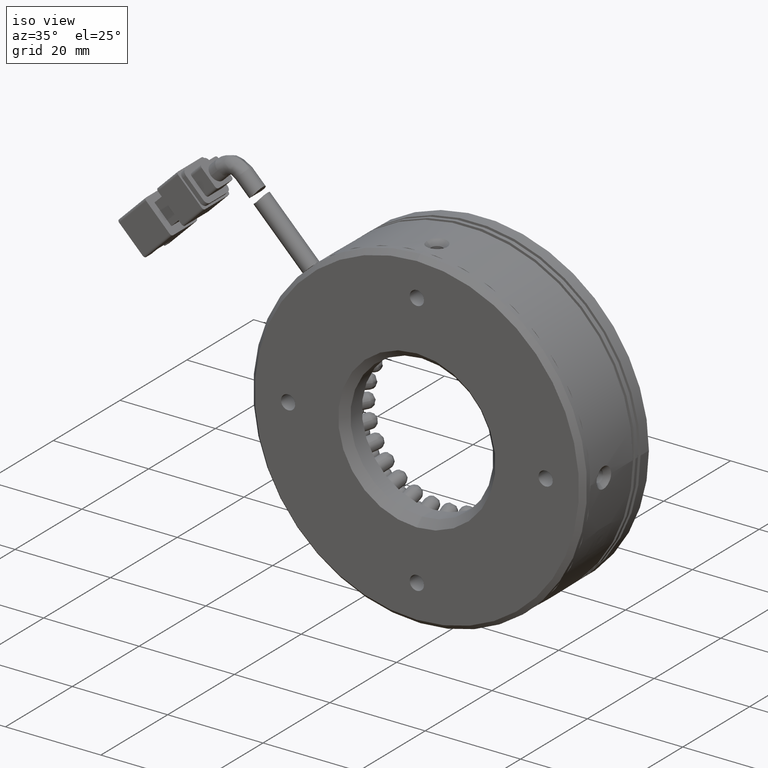
[diagram: clean part render]
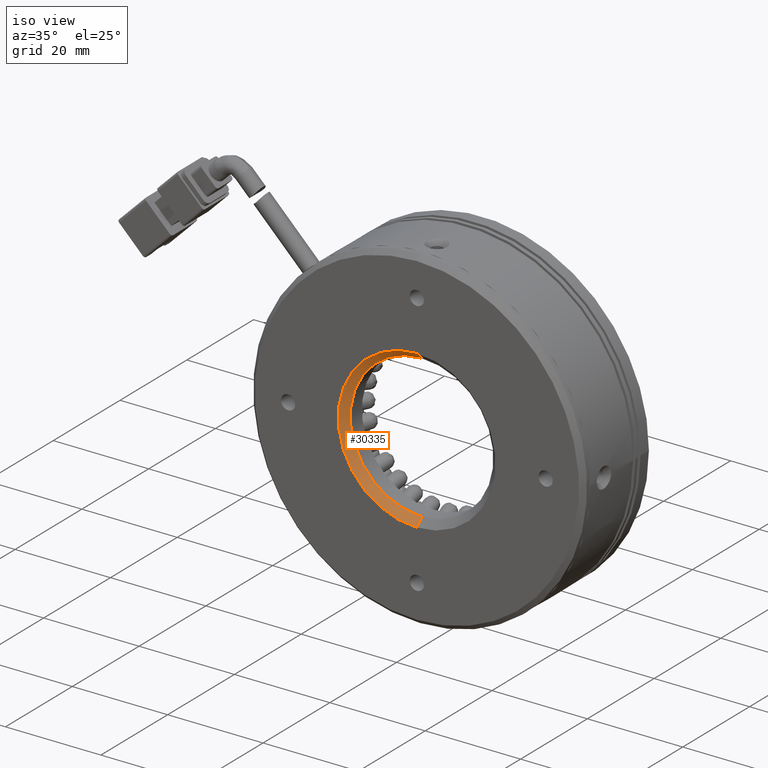
[diagram: same view with one face highlighted and labeled with its STEP entity id]
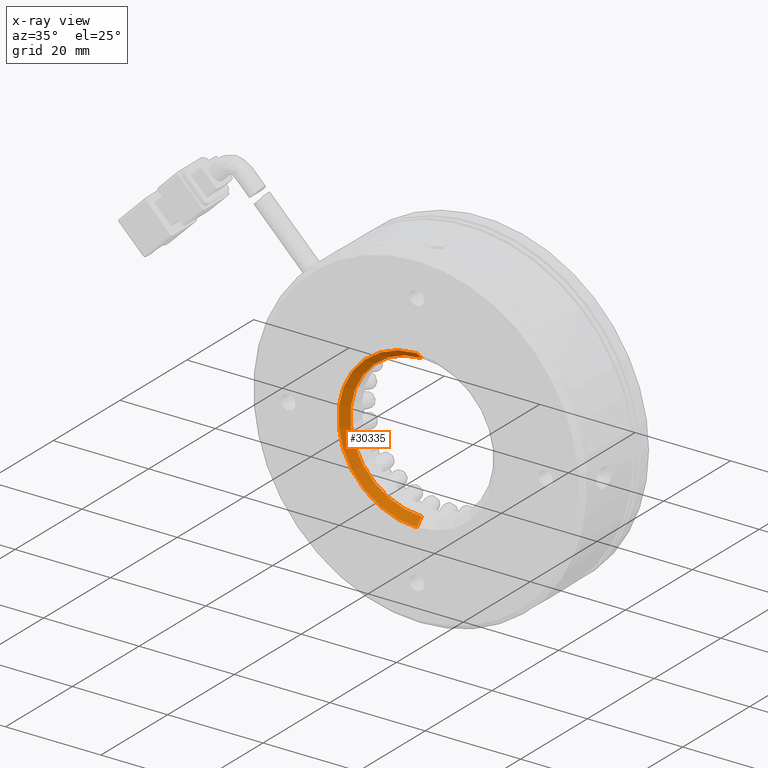
[diagram: x-ray of the same camera — body ghosted, the highlighted face saturated]
A machine part, iso view. The second image highlights one B-rep face of the part: STEP entity #30335.
The next image is the same camera in x-ray: the body ghosted, the highlighted face saturated — about 0% of this face is hidden behind the body in this view.
In plain terms, the highlighted conical surface has half-angle 45 deg.
Its self-contained STEP definition (entity closure, byte-faithful):
#1633 = ORIENTED_EDGE ( 'NONE', *, *, #20548, .F. ) ;
#7195 = DIRECTION ( 'NONE',  ( -0.0000000000000000000, 1.000000000000000000, -0.0000000000000000000 ) ) ;
#9467 = LINE ( 'NONE', #64908, #79340 ) ;
#9987 = CARTESIAN_POINT ( 'NONE',  ( -3.499229287090538600, 31.07623868994505800, -16.50000000000002800 ) ) ;
#10439 = AXIS2_PLACEMENT_3D ( 'NONE', #38099, #86937, #45147 ) ;
#10665 = CARTESIAN_POINT ( 'NONE',  ( -3.499229287090538600, 32.57623868994507900, 15.00000000000001200 ) ) ;
#15674 = EDGE_CURVE ( 'NONE', #32998, #26105, #80935, .T. ) ;
#16092 = DIRECTION ( 'NONE',  ( 8.659560562354926700E-017, -0.7071067811865480200, 0.7071067811865470200 ) ) ;
#16946 = VERTEX_POINT ( 'NONE', #10665 ) ;
#18098 = CARTESIAN_POINT ( 'NONE',  ( -3.499229287090536800, 32.57623868994507900, -15.00000000000001200 ) ) ;
#20548 = EDGE_CURVE ( 'NONE', #16946, #32998, #80063, .T. ) ;
#20741 = DIRECTION ( 'NONE',  ( 0.0000000000000000000, 0.0000000000000000000, -1.000000000000000000 ) ) ;
#24345 = EDGE_CURVE ( 'NONE', #16946, #80985, #9467, .T. ) ;
#25645 = CARTESIAN_POINT ( 'NONE',  ( -3.499229287090538600, 31.07623868994505800, -16.50000000000002800 ) ) ;
#26105 = VERTEX_POINT ( 'NONE', #25645 ) ;
#26420 = ORIENTED_EDGE ( 'NONE', *, *, #24345, .T. ) ;
#27173 = AXIS2_PLACEMENT_3D ( 'NONE', #83293, #69309, #20741 ) ;
#28877 = FACE_OUTER_BOUND ( 'NONE', #79722, .T. ) ;
#30335 = ADVANCED_FACE ( 'NONE', ( #28877 ), #57263, .F. ) ;
#32998 = VERTEX_POINT ( 'NONE', #18098 ) ;
#37780 = ORIENTED_EDGE ( 'NONE', *, *, #15674, .F. ) ;
#37891 = CIRCLE ( 'NONE', #87340, 16.50000000000002800 ) ;
#38099 = CARTESIAN_POINT ( 'NONE',  ( -3.499229287090538600, 32.57623868994507900, 0.0000000000000000000 ) ) ;
#45147 = DIRECTION ( 'NONE',  ( 0.0000000000000000000, 0.0000000000000000000, -1.000000000000000000 ) ) ;
#47708 = CARTESIAN_POINT ( 'NONE',  ( -3.499229287090538600, 31.07623868994505800, 0.0000000000000000000 ) ) ;
#55976 = DIRECTION ( 'NONE',  ( 0.0000000000000000000, 0.0000000000000000000, -1.000000000000000000 ) ) ;
#57263 = CONICAL_SURFACE ( 'NONE', #27173, 16.50000000000002800, 0.7853981633974476100 ) ;
#58900 = CARTESIAN_POINT ( 'NONE',  ( -3.499229287090536400, 31.07623868994505800, 16.50000000000002800 ) ) ;
#64908 = CARTESIAN_POINT ( 'NONE',  ( -3.499229287090536400, 31.07623868994505800, 16.50000000000002800 ) ) ;
#69309 = DIRECTION ( 'NONE',  ( 0.0000000000000000000, -1.000000000000000000, 0.0000000000000000000 ) ) ;
#76301 = ORIENTED_EDGE ( 'NONE', *, *, #82100, .F. ) ;
#78732 = VECTOR ( 'NONE', #86850, 1000.000000000000000 ) ;
#79340 = VECTOR ( 'NONE', #16092, 1000.000000000000000 ) ;
#79722 = EDGE_LOOP ( 'NONE', ( #1633, #26420, #76301, #37780 ) ) ;
#80063 = CIRCLE ( 'NONE', #10439, 15.00000000000001200 ) ;
#80935 = LINE ( 'NONE', #9987, #78732 ) ;
#80985 = VERTEX_POINT ( 'NONE', #58900 ) ;
#82100 = EDGE_CURVE ( 'NONE', #26105, #80985, #37891, .T. ) ;
#83293 = CARTESIAN_POINT ( 'NONE',  ( -3.499229287090538600, 31.07623868994505800, 0.0000000000000000000 ) ) ;
#86850 = DIRECTION ( 'NONE',  ( 0.0000000000000000000, -0.7071067811865480200, -0.7071067811865470200 ) ) ;
#86937 = DIRECTION ( 'NONE',  ( -0.0000000000000000000, -1.000000000000000000, -0.0000000000000000000 ) ) ;
#87340 = AXIS2_PLACEMENT_3D ( 'NONE', #47708, #7195, #55976 ) ;